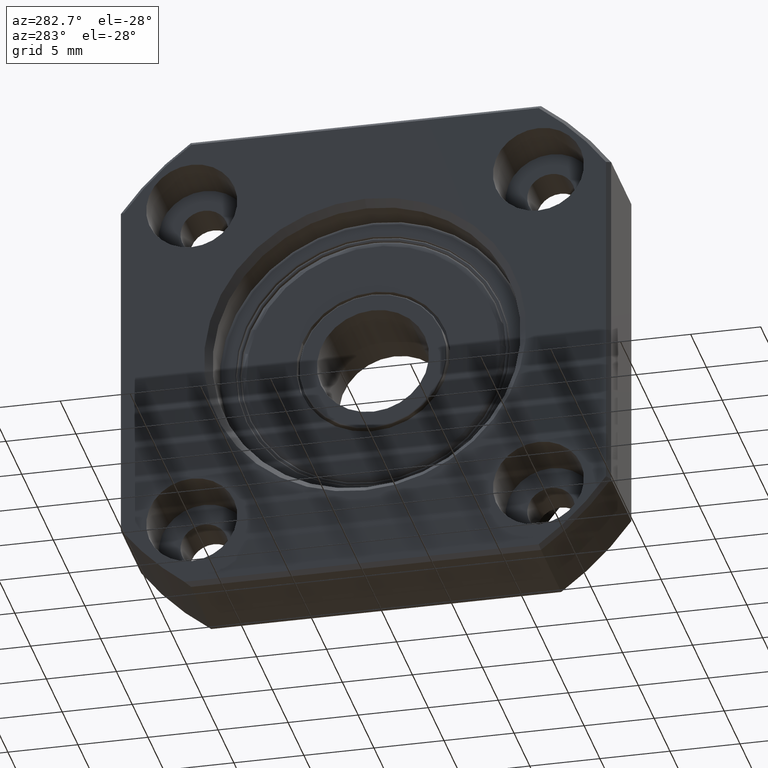
[diagram: clean part render]
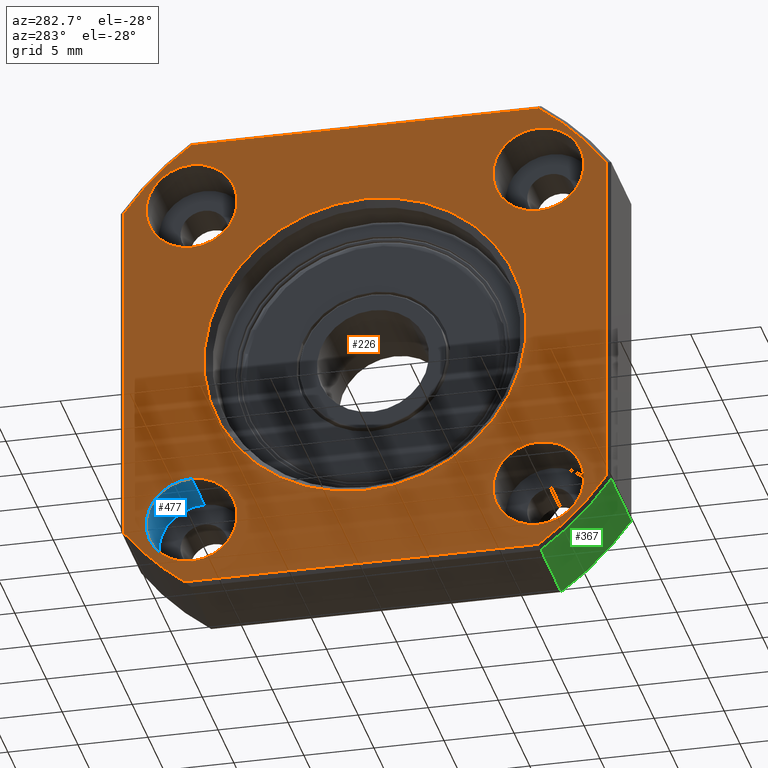
[diagram: same view with three faces highlighted in distinct colors, each labeled with its STEP entity id]
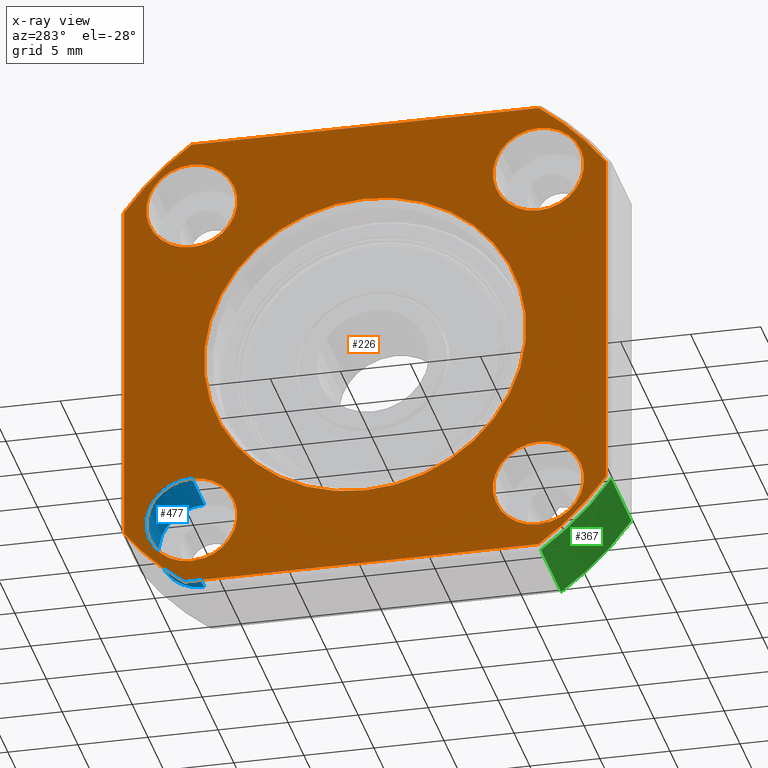
[diagram: x-ray of the same camera — body ghosted, the three highlighted faces saturated]
A machine part, auxiliary view with three faces highlighted in distinct colors.
The next image is the same camera in x-ray (body ghosted, the three faces saturated) — at least one of them is partly hidden behind the body in this view.
Their STEP definitions:

[orange] entity #226 — the highlighted planar face has unit normal (1, 0, 0).
#65 = VERTEX_POINT ( 'NONE', #814 ) ;
#67 = VERTEX_POINT ( 'NONE', #809 ) ;
#100 = EDGE_CURVE ( 'NONE', #65, #67, #1035, .T. ) ;
#116 = EDGE_CURVE ( 'NONE', #117, #140, #959, .T. ) ;
#117 = VERTEX_POINT ( 'NONE', #954 ) ;
#130 = EDGE_CURVE ( 'NONE', #246, #131, #1012, .T. ) ;
#131 = VERTEX_POINT ( 'NONE', #1007 ) ;
#140 = VERTEX_POINT ( 'NONE', #987 ) ;
#143 = EDGE_CURVE ( 'NONE', #159, #144, #1076, .T. ) ;
#144 = VERTEX_POINT ( 'NONE', #1071 ) ;
#159 = VERTEX_POINT ( 'NONE', #945 ) ;
#214 = ORIENTED_EDGE ( 'NONE', *, *, #100, .F. ) ;
#215 = EDGE_LOOP ( 'NONE', ( #308, #303 ) ) ;
#219 = EDGE_LOOP ( 'NONE', ( #220, #214 ) ) ;
#220 = ORIENTED_EDGE ( 'NONE', *, *, #221, .F. ) ;
#221 = EDGE_CURVE ( 'NONE', #67, #65, #1338, .T. ) ;
#222 = EDGE_LOOP ( 'NONE', ( #223, #224 ) ) ;
#223 = ORIENTED_EDGE ( 'NONE', *, *, #116, .T. ) ;
#224 = ORIENTED_EDGE ( 'NONE', *, *, #225, .T. ) ;
#225 = EDGE_CURVE ( 'NONE', #140, #117, #1164, .T. ) ;
#226 = ADVANCED_FACE ( 'NONE', ( #1159, #1158, #1157, #1156, #1155, #1154 ), #1153, .F. ) ;
#230 = EDGE_CURVE ( 'NONE', #238, #231, #1151, .T. ) ;
#231 = VERTEX_POINT ( 'NONE', #1143 ) ;
#238 = VERTEX_POINT ( 'NONE', #1133 ) ;
#246 = VERTEX_POINT ( 'NONE', #1180 ) ;
#265 = EDGE_CURVE ( 'NONE', #266, #270, #1298, .T. ) ;
#266 = VERTEX_POINT ( 'NONE', #1293 ) ;
#270 = VERTEX_POINT ( 'NONE', #1292 ) ;
#285 = EDGE_LOOP ( 'NONE', ( #286, #365 ) ) ;
#286 = ORIENTED_EDGE ( 'NONE', *, *, #287, .F. ) ;
#287 = EDGE_CURVE ( 'NONE', #231, #238, #1221, .T. ) ;
#288 = ORIENTED_EDGE ( 'NONE', *, *, #289, .F. ) ;
#289 = EDGE_CURVE ( 'NONE', #131, #246, #1216, .T. ) ;
#290 = ORIENTED_EDGE ( 'NONE', *, *, #130, .F. ) ;
#302 = EDGE_CURVE ( 'NONE', #144, #159, #1193, .T. ) ;
#303 = ORIENTED_EDGE ( 'NONE', *, *, #143, .F. ) ;
#304 = EDGE_LOOP ( 'NONE', ( #288, #290 ) ) ;
#308 = ORIENTED_EDGE ( 'NONE', *, *, #302, .F. ) ;
#330 = EDGE_CURVE ( 'NONE', #402, #331, #1314, .T. ) ;
#331 = VERTEX_POINT ( 'NONE', #1309 ) ;
#332 = ORIENTED_EDGE ( 'NONE', *, *, #333, .T. ) ;
#333 = EDGE_CURVE ( 'NONE', #331, #266, #1308, .T. ) ;
#336 = VERTEX_POINT ( 'NONE', #1303 ) ;
#337 = VERTEX_POINT ( 'NONE', #1304 ) ;
#360 = EDGE_LOOP ( 'NONE', ( #361, #429, #436, #432, #423, #425, #414, #332 ) ) ;
#361 = ORIENTED_EDGE ( 'NONE', *, *, #265, .T. ) ;
#365 = ORIENTED_EDGE ( 'NONE', *, *, #230, .F. ) ;
#395 = VERTEX_POINT ( 'NONE', #4395 ) ;
#402 = VERTEX_POINT ( 'NONE', #4379 ) ;
#414 = ORIENTED_EDGE ( 'NONE', *, *, #330, .T. ) ;
#423 = ORIENTED_EDGE ( 'NONE', *, *, #424, .T. ) ;
#424 = EDGE_CURVE ( 'NONE', #336, #434, #4317, .T. ) ;
#425 = ORIENTED_EDGE ( 'NONE', *, *, #426, .T. ) ;
#426 = EDGE_CURVE ( 'NONE', #434, #402, #4311, .T. ) ;
#429 = ORIENTED_EDGE ( 'NONE', *, *, #435, .T. ) ;
#432 = ORIENTED_EDGE ( 'NONE', *, *, #433, .T. ) ;
#433 = EDGE_CURVE ( 'NONE', #395, #336, #4366, .T. ) ;
#434 = VERTEX_POINT ( 'NONE', #4362 ) ;
#435 = EDGE_CURVE ( 'NONE', #270, #337, #4361, .T. ) ;
#436 = ORIENTED_EDGE ( 'NONE', *, *, #437, .T. ) ;
#437 = EDGE_CURVE ( 'NONE', #337, #395, #4357, .T. ) ;
#809 = CARTESIAN_POINT ( 'NONE',  ( 0.0000000000000000000, 12.37436867076460700, -9.124368670764555500 ) ) ;
#814 = CARTESIAN_POINT ( 'NONE',  ( 0.0000000000000000000, 12.37436867076460700, -15.62436867076455400 ) ) ;
#945 = CARTESIAN_POINT ( 'NONE',  ( 0.0000000000000000000, 12.37436867076460700, 9.124368670764559000 ) ) ;
#954 = CARTESIAN_POINT ( 'NONE',  ( 0.0000000000000000000, 0.0000000000000000000, 11.49999999999999600 ) ) ;
#955 = DIRECTION ( 'NONE',  ( 0.0000000000000000000, 0.0000000000000000000, -1.000000000000000000 ) ) ;
#956 = DIRECTION ( 'NONE',  ( 1.000000000000000000, 0.0000000000000000000, 0.0000000000000000000 ) ) ;
#957 = CARTESIAN_POINT ( 'NONE',  ( 0.0000000000000000000, 0.0000000000000000000, 0.0000000000000000000 ) ) ;
#958 = AXIS2_PLACEMENT_3D ( 'NONE', #957, #956, #955 ) ;
#959 = CIRCLE ( 'NONE', #958, 11.49999999999999600 ) ;
#983 = DIRECTION ( 'NONE',  ( 0.0000000000000000000, 0.0000000000000000000, 1.000000000000000000 ) ) ;
#984 = DIRECTION ( 'NONE',  ( -1.000000000000000000, -0.0000000000000000000, -0.0000000000000000000 ) ) ;
#985 = CARTESIAN_POINT ( 'NONE',  ( 0.0000000000000000000, 12.37436867076460700, -12.37436867076455500 ) ) ;
#986 = AXIS2_PLACEMENT_3D ( 'NONE', #985, #984, #983 ) ;
#987 = CARTESIAN_POINT ( 'NONE',  ( 0.0000000000000000000, 1.408297306895733500E-015, -11.49999999999999600 ) ) ;
#1007 = CARTESIAN_POINT ( 'NONE',  ( 0.0000000000000000000, -12.37436867076460000, 15.62436867076455700 ) ) ;
#1008 = DIRECTION ( 'NONE',  ( 0.0000000000000000000, 0.0000000000000000000, 1.000000000000000000 ) ) ;
#1009 = DIRECTION ( 'NONE',  ( -1.000000000000000000, -0.0000000000000000000, -0.0000000000000000000 ) ) ;
#1010 = CARTESIAN_POINT ( 'NONE',  ( 0.0000000000000000000, -12.37436867076460000, 12.37436867076455900 ) ) ;
#1011 = AXIS2_PLACEMENT_3D ( 'NONE', #1010, #1009, #1008 ) ;
#1012 = CIRCLE ( 'NONE', #1011, 3.249999999999999600 ) ;
#1035 = CIRCLE ( 'NONE', #986, 3.249999999999999600 ) ;
#1071 = CARTESIAN_POINT ( 'NONE',  ( 0.0000000000000000000, 12.37436867076460700, 15.62436867076455700 ) ) ;
#1072 = DIRECTION ( 'NONE',  ( 0.0000000000000000000, 0.0000000000000000000, 1.000000000000000000 ) ) ;
#1073 = DIRECTION ( 'NONE',  ( -1.000000000000000000, -0.0000000000000000000, -0.0000000000000000000 ) ) ;
#1074 = CARTESIAN_POINT ( 'NONE',  ( 0.0000000000000000000, 12.37436867076460700, 12.37436867076455900 ) ) ;
#1075 = AXIS2_PLACEMENT_3D ( 'NONE', #1074, #1073, #1072 ) ;
#1076 = CIRCLE ( 'NONE', #1075, 3.249999999999999600 ) ;
#1133 = CARTESIAN_POINT ( 'NONE',  ( 0.0000000000000000000, -12.37436867076460000, -15.62436867076455400 ) ) ;
#1143 = CARTESIAN_POINT ( 'NONE',  ( 0.0000000000000000000, -12.37436867076460000, -9.124368670764555500 ) ) ;
#1144 = DIRECTION ( 'NONE',  ( 0.0000000000000000000, 0.0000000000000000000, 1.000000000000000000 ) ) ;
#1145 = DIRECTION ( 'NONE',  ( -1.000000000000000000, -0.0000000000000000000, -0.0000000000000000000 ) ) ;
#1146 = CARTESIAN_POINT ( 'NONE',  ( 0.0000000000000000000, -12.37436867076460000, -12.37436867076455500 ) ) ;
#1147 = AXIS2_PLACEMENT_3D ( 'NONE', #1146, #1145, #1144 ) ;
#1148 = DIRECTION ( 'NONE',  ( 0.0000000000000000000, 0.0000000000000000000, -1.000000000000000000 ) ) ;
#1149 = DIRECTION ( 'NONE',  ( 1.000000000000000000, 0.0000000000000000000, 0.0000000000000000000 ) ) ;
#1150 = AXIS2_PLACEMENT_3D ( 'NONE', #1152, #1149, #1148 ) ;
#1151 = CIRCLE ( 'NONE', #1147, 3.249999999999999600 ) ;
#1152 = CARTESIAN_POINT ( 'NONE',  ( 0.0000000000000000000, 10.99999999999999800, 0.0000000000000000000 ) ) ;
#1153 = PLANE ( 'NONE',  #1150 ) ;
#1154 = FACE_OUTER_BOUND ( 'NONE', #360, .T. ) ;
#1155 = FACE_BOUND ( 'NONE', #285, .T. ) ;
#1156 = FACE_BOUND ( 'NONE', #304, .T. ) ;
#1157 = FACE_BOUND ( 'NONE', #215, .T. ) ;
#1158 = FACE_BOUND ( 'NONE', #219, .T. ) ;
#1159 = FACE_BOUND ( 'NONE', #222, .T. ) ;
#1160 = DIRECTION ( 'NONE',  ( 0.0000000000000000000, 0.0000000000000000000, -1.000000000000000000 ) ) ;
#1161 = DIRECTION ( 'NONE',  ( 1.000000000000000000, 0.0000000000000000000, 0.0000000000000000000 ) ) ;
#1162 = CARTESIAN_POINT ( 'NONE',  ( 0.0000000000000000000, 0.0000000000000000000, 0.0000000000000000000 ) ) ;
#1163 = AXIS2_PLACEMENT_3D ( 'NONE', #1162, #1161, #1160 ) ;
#1164 = CIRCLE ( 'NONE', #1163, 11.49999999999999600 ) ;
#1180 = CARTESIAN_POINT ( 'NONE',  ( 0.0000000000000000000, -12.37436867076460000, 9.124368670764559000 ) ) ;
#1189 = DIRECTION ( 'NONE',  ( 0.0000000000000000000, 0.0000000000000000000, 1.000000000000000000 ) ) ;
#1190 = DIRECTION ( 'NONE',  ( -1.000000000000000000, -0.0000000000000000000, -0.0000000000000000000 ) ) ;
#1191 = CARTESIAN_POINT ( 'NONE',  ( 0.0000000000000000000, 12.37436867076460700, 12.37436867076455900 ) ) ;
#1192 = AXIS2_PLACEMENT_3D ( 'NONE', #1191, #1190, #1189 ) ;
#1193 = CIRCLE ( 'NONE', #1192, 3.249999999999999600 ) ;
#1212 = DIRECTION ( 'NONE',  ( 0.0000000000000000000, 0.0000000000000000000, 1.000000000000000000 ) ) ;
#1213 = DIRECTION ( 'NONE',  ( -1.000000000000000000, -0.0000000000000000000, -0.0000000000000000000 ) ) ;
#1214 = CARTESIAN_POINT ( 'NONE',  ( 0.0000000000000000000, -12.37436867076460000, 12.37436867076455900 ) ) ;
#1215 = AXIS2_PLACEMENT_3D ( 'NONE', #1214, #1213, #1212 ) ;
#1216 = CIRCLE ( 'NONE', #1215, 3.249999999999999600 ) ;
#1217 = DIRECTION ( 'NONE',  ( 0.0000000000000000000, 0.0000000000000000000, 1.000000000000000000 ) ) ;
#1218 = DIRECTION ( 'NONE',  ( -1.000000000000000000, -0.0000000000000000000, -0.0000000000000000000 ) ) ;
#1219 = CARTESIAN_POINT ( 'NONE',  ( 0.0000000000000000000, -12.37436867076460000, -12.37436867076455500 ) ) ;
#1220 = AXIS2_PLACEMENT_3D ( 'NONE', #1219, #1218, #1217 ) ;
#1221 = CIRCLE ( 'NONE', #1220, 3.249999999999999600 ) ;
#1292 = CARTESIAN_POINT ( 'NONE',  ( 0.0000000000000000000, 12.90000000000007700, -17.19999999999994200 ) ) ;
#1293 = CARTESIAN_POINT ( 'NONE',  ( 0.0000000000000000000, 17.19999999999999200, -12.90000000000000600 ) ) ;
#1294 = DIRECTION ( 'NONE',  ( 0.0000000000000000000, 0.0000000000000000000, 1.000000000000000000 ) ) ;
#1295 = DIRECTION ( 'NONE',  ( -1.000000000000000000, -0.0000000000000000000, -0.0000000000000000000 ) ) ;
#1296 = CARTESIAN_POINT ( 'NONE',  ( 0.0000000000000000000, 0.0000000000000000000, 0.0000000000000000000 ) ) ;
#1297 = AXIS2_PLACEMENT_3D ( 'NONE', #1296, #1295, #1294 ) ;
#1298 = CIRCLE ( 'NONE', #1297, 21.50000000000000000 ) ;
#1303 = CARTESIAN_POINT ( 'NONE',  ( 0.0000000000000000000, -17.20000000000000600, 12.39354670786371800 ) ) ;
#1304 = CARTESIAN_POINT ( 'NONE',  ( 0.0000000000000000000, -12.39354670786381300, -17.19999999999994200 ) ) ;
#1305 = DIRECTION ( 'NONE',  ( 0.0000000000000000000, 0.0000000000000000000, -1.000000000000000000 ) ) ;
#1306 = VECTOR ( 'NONE', #1305, 1000.000000000000000 ) ;
#1307 = CARTESIAN_POINT ( 'NONE',  ( 0.0000000000000000000, 17.19999999999999200, -12.48999599679680000 ) ) ;
#1308 = LINE ( 'NONE', #1307, #1306 ) ;
#1309 = CARTESIAN_POINT ( 'NONE',  ( 0.0000000000000000000, 17.19999999999999200, 12.39354670786373400 ) ) ;
#1310 = DIRECTION ( 'NONE',  ( 0.0000000000000000000, 5.329070518200751400E-015, -1.000000000000000000 ) ) ;
#1311 = DIRECTION ( 'NONE',  ( -1.000000000000000000, -0.0000000000000000000, -0.0000000000000000000 ) ) ;
#1312 = CARTESIAN_POINT ( 'NONE',  ( 0.0000000000000000000, 0.0000000000000000000, 0.0000000000000000000 ) ) ;
#1313 = AXIS2_PLACEMENT_3D ( 'NONE', #1312, #1311, #1310 ) ;
#1314 = CIRCLE ( 'NONE', #1313, 21.19999999999999600 ) ;
#1334 = DIRECTION ( 'NONE',  ( 0.0000000000000000000, 0.0000000000000000000, 1.000000000000000000 ) ) ;
#1335 = DIRECTION ( 'NONE',  ( -1.000000000000000000, -0.0000000000000000000, -0.0000000000000000000 ) ) ;
#1336 = CARTESIAN_POINT ( 'NONE',  ( 0.0000000000000000000, 12.37436867076460700, -12.37436867076455500 ) ) ;
#1337 = AXIS2_PLACEMENT_3D ( 'NONE', #1336, #1335, #1334 ) ;
#1338 = CIRCLE ( 'NONE', #1337, 3.249999999999999600 ) ;
#4308 = DIRECTION ( 'NONE',  ( 0.0000000000000000000, 1.000000000000000000, 0.0000000000000000000 ) ) ;
#4309 = VECTOR ( 'NONE', #4308, 1000.000000000000000 ) ;
#4310 = CARTESIAN_POINT ( 'NONE',  ( 0.0000000000000000000, 12.48999599679689400, 17.19999999999992800 ) ) ;
#4311 = LINE ( 'NONE', #4310, #4309 ) ;
#4313 = DIRECTION ( 'NONE',  ( 0.0000000000000000000, -3.552713678800500900E-015, -1.000000000000000000 ) ) ;
#4314 = DIRECTION ( 'NONE',  ( -1.000000000000000000, -0.0000000000000000000, -0.0000000000000000000 ) ) ;
#4315 = CARTESIAN_POINT ( 'NONE',  ( 0.0000000000000000000, 0.0000000000000000000, 0.0000000000000000000 ) ) ;
#4316 = AXIS2_PLACEMENT_3D ( 'NONE', #4315, #4314, #4313 ) ;
#4317 = CIRCLE ( 'NONE', #4316, 21.19999999999999600 ) ;
#4353 = DIRECTION ( 'NONE',  ( 0.0000000000000000000, 8.881784197001252300E-016, -1.000000000000000000 ) ) ;
#4354 = DIRECTION ( 'NONE',  ( -1.000000000000000000, -0.0000000000000000000, -0.0000000000000000000 ) ) ;
#4355 = CARTESIAN_POINT ( 'NONE',  ( 0.0000000000000000000, 0.0000000000000000000, 0.0000000000000000000 ) ) ;
#4356 = AXIS2_PLACEMENT_3D ( 'NONE', #4355, #4354, #4353 ) ;
#4357 = CIRCLE ( 'NONE', #4356, 21.19999999999999600 ) ;
#4358 = DIRECTION ( 'NONE',  ( 0.0000000000000000000, -1.000000000000000000, 0.0000000000000000000 ) ) ;
#4359 = VECTOR ( 'NONE', #4358, 1000.000000000000000 ) ;
#4360 = CARTESIAN_POINT ( 'NONE',  ( 0.0000000000000000000, -12.48999599679687500, -17.19999999999994200 ) ) ;
#4361 = LINE ( 'NONE', #4360, #4359 ) ;
#4362 = CARTESIAN_POINT ( 'NONE',  ( 0.0000000000000000000, -12.39354670786382500, 17.19999999999992800 ) ) ;
#4363 = DIRECTION ( 'NONE',  ( 0.0000000000000000000, 0.0000000000000000000, 1.000000000000000000 ) ) ;
#4364 = VECTOR ( 'NONE', #4363, 1000.000000000000000 ) ;
#4365 = CARTESIAN_POINT ( 'NONE',  ( 0.0000000000000000000, -17.20000000000000600, 12.48999599679678100 ) ) ;
#4366 = LINE ( 'NONE', #4365, #4364 ) ;
#4379 = CARTESIAN_POINT ( 'NONE',  ( 0.0000000000000000000, 12.39354670786382500, 17.19999999999992800 ) ) ;
#4395 = CARTESIAN_POINT ( 'NONE',  ( 0.0000000000000000000, -17.20000000000000600, -12.39354670786371800 ) ) ;

[blue] entity #477 — the highlighted cylindrical surface (partial cylindrical patch) has radius 3.25 mm, axis along (-1, -0, -0).
#65 = VERTEX_POINT ( 'NONE', #814 ) ;
#66 = EDGE_CURVE ( 'NONE', #101, #65, #813, .T. ) ;
#67 = VERTEX_POINT ( 'NONE', #809 ) ;
#97 = EDGE_CURVE ( 'NONE', #102, #67, #1045, .T. ) ;
#101 = VERTEX_POINT ( 'NONE', #982 ) ;
#102 = VERTEX_POINT ( 'NONE', #981 ) ;
#221 = EDGE_CURVE ( 'NONE', #67, #65, #1338, .T. ) ;
#470 = ORIENTED_EDGE ( 'NONE', *, *, #66, .F. ) ;
#472 = ORIENTED_EDGE ( 'NONE', *, *, #481, .F. ) ;
#475 = EDGE_LOOP ( 'NONE', ( #470, #472, #514, #515 ) ) ;
#477 = ADVANCED_FACE ( 'NONE', ( #4305 ), #4301, .F. ) ;
#481 = EDGE_CURVE ( 'NONE', #102, #101, #4289, .T. ) ;
#514 = ORIENTED_EDGE ( 'NONE', *, *, #97, .T. ) ;
#515 = ORIENTED_EDGE ( 'NONE', *, *, #221, .T. ) ;
#809 = CARTESIAN_POINT ( 'NONE',  ( 0.0000000000000000000, 12.37436867076460700, -9.124368670764555500 ) ) ;
#810 = DIRECTION ( 'NONE',  ( -1.000000000000000000, -0.0000000000000000000, -0.0000000000000000000 ) ) ;
#811 = VECTOR ( 'NONE', #810, 1000.000000000000000 ) ;
#812 = CARTESIAN_POINT ( 'NONE',  ( 0.0000000000000000000, 12.37436867076460700, -15.62436867076455400 ) ) ;
#813 = LINE ( 'NONE', #812, #811 ) ;
#814 = CARTESIAN_POINT ( 'NONE',  ( 0.0000000000000000000, 12.37436867076460700, -15.62436867076455400 ) ) ;
#981 = CARTESIAN_POINT ( 'NONE',  ( 4.000000000000000000, 12.37436867076460700, -9.124368670764555500 ) ) ;
#982 = CARTESIAN_POINT ( 'NONE',  ( 4.000000000000000000, 12.37436867076460700, -15.62436867076455400 ) ) ;
#1042 = DIRECTION ( 'NONE',  ( -1.000000000000000000, -0.0000000000000000000, -0.0000000000000000000 ) ) ;
#1043 = VECTOR ( 'NONE', #1042, 1000.000000000000000 ) ;
#1044 = CARTESIAN_POINT ( 'NONE',  ( 0.0000000000000000000, 12.37436867076460700, -9.124368670764555500 ) ) ;
#1045 = LINE ( 'NONE', #1044, #1043 ) ;
#1334 = DIRECTION ( 'NONE',  ( 0.0000000000000000000, 0.0000000000000000000, 1.000000000000000000 ) ) ;
#1335 = DIRECTION ( 'NONE',  ( -1.000000000000000000, -0.0000000000000000000, -0.0000000000000000000 ) ) ;
#1336 = CARTESIAN_POINT ( 'NONE',  ( 0.0000000000000000000, 12.37436867076460700, -12.37436867076455500 ) ) ;
#1337 = AXIS2_PLACEMENT_3D ( 'NONE', #1336, #1335, #1334 ) ;
#1338 = CIRCLE ( 'NONE', #1337, 3.249999999999999600 ) ;
#4286 = DIRECTION ( 'NONE',  ( 0.0000000000000000000, 0.0000000000000000000, 1.000000000000000000 ) ) ;
#4287 = DIRECTION ( 'NONE',  ( -1.000000000000000000, -0.0000000000000000000, -0.0000000000000000000 ) ) ;
#4288 = AXIS2_PLACEMENT_3D ( 'NONE', #4295, #4287, #4286 ) ;
#4289 = CIRCLE ( 'NONE', #4288, 3.249999999999999600 ) ;
#4295 = CARTESIAN_POINT ( 'NONE',  ( 4.000000000000000000, 12.37436867076460700, -12.37436867076455500 ) ) ;
#4297 = DIRECTION ( 'NONE',  ( 0.0000000000000000000, 0.0000000000000000000, 1.000000000000000000 ) ) ;
#4298 = DIRECTION ( 'NONE',  ( -1.000000000000000000, -0.0000000000000000000, -0.0000000000000000000 ) ) ;
#4299 = CARTESIAN_POINT ( 'NONE',  ( 0.0000000000000000000, 12.37436867076460700, -12.37436867076455500 ) ) ;
#4300 = AXIS2_PLACEMENT_3D ( 'NONE', #4299, #4298, #4297 ) ;
#4301 = CYLINDRICAL_SURFACE ( 'NONE', #4300, 3.249999999999999600 ) ;
#4305 = FACE_OUTER_BOUND ( 'NONE', #475, .T. ) ;

[green] entity #367 — the highlighted cylindrical surface (partial cylindrical patch) has radius 21.5 mm, axis along (-1, -0, -0).
#240 = VERTEX_POINT ( 'NONE', #1131 ) ;
#241 = ORIENTED_EDGE ( 'NONE', *, *, #338, .T. ) ;
#305 = VERTEX_POINT ( 'NONE', #1279 ) ;
#306 = ORIENTED_EDGE ( 'NONE', *, *, #307, .F. ) ;
#307 = EDGE_CURVE ( 'NONE', #305, #240, #1278, .T. ) ;
#338 = EDGE_CURVE ( 'NONE', #305, #339, #1128, .T. ) ;
#339 = VERTEX_POINT ( 'NONE', #1390 ) ;
#340 = ORIENTED_EDGE ( 'NONE', *, *, #341, .F. ) ;
#341 = EDGE_CURVE ( 'NONE', #390, #339, #1389, .T. ) ;
#364 = EDGE_LOOP ( 'NONE', ( #306, #241, #340, #385 ) ) ;
#367 = ADVANCED_FACE ( 'NONE', ( #4479 ), #4478, .T. ) ;
#385 = ORIENTED_EDGE ( 'NONE', *, *, #386, .T. ) ;
#386 = EDGE_CURVE ( 'NONE', #390, #240, #4416, .T. ) ;
#390 = VERTEX_POINT ( 'NONE', #4405 ) ;
#1119 = AXIS2_PLACEMENT_3D ( 'NONE', #1120, #1392, #1391 ) ;
#1120 = CARTESIAN_POINT ( 'NONE',  ( 0.2999999999999947200, 0.0000000000000000000, 0.0000000000000000000 ) ) ;
#1128 = CIRCLE ( 'NONE', #1119, 21.50000000000000000 ) ;
#1131 = CARTESIAN_POINT ( 'NONE',  ( 6.700000000000011700, -17.50000000000000700, -12.48999599679678100 ) ) ;
#1275 = DIRECTION ( 'NONE',  ( 1.000000000000000000, 0.0000000000000000000, 0.0000000000000000000 ) ) ;
#1276 = VECTOR ( 'NONE', #1275, 1000.000000000000000 ) ;
#1277 = CARTESIAN_POINT ( 'NONE',  ( -81.64660725642808400, -17.50000000000000700, -12.48999599679678100 ) ) ;
#1278 = LINE ( 'NONE', #1277, #1276 ) ;
#1279 = CARTESIAN_POINT ( 'NONE',  ( 0.2999999999999947200, -17.50000000000000700, -12.48999599679678100 ) ) ;
#1386 = DIRECTION ( 'NONE',  ( -1.000000000000000000, -0.0000000000000000000, -0.0000000000000000000 ) ) ;
#1387 = VECTOR ( 'NONE', #1386, 1000.000000000000000 ) ;
#1388 = CARTESIAN_POINT ( 'NONE',  ( -81.64660725642808400, -12.48999599679687500, -17.49999999999994300 ) ) ;
#1389 = LINE ( 'NONE', #1388, #1387 ) ;
#1390 = CARTESIAN_POINT ( 'NONE',  ( 0.2999999999999947200, -12.48999599679687500, -17.49999999999994300 ) ) ;
#1391 = DIRECTION ( 'NONE',  ( 0.0000000000000000000, 0.0000000000000000000, -1.000000000000000000 ) ) ;
#1392 = DIRECTION ( 'NONE',  ( 1.000000000000000000, 0.0000000000000000000, 0.0000000000000000000 ) ) ;
#4405 = CARTESIAN_POINT ( 'NONE',  ( 6.700000000000011700, -12.48999599679687500, -17.49999999999994300 ) ) ;
#4408 = DIRECTION ( 'NONE',  ( 0.0000000000000000000, 0.0000000000000000000, 1.000000000000000000 ) ) ;
#4409 = DIRECTION ( 'NONE',  ( -1.000000000000000000, -0.0000000000000000000, -0.0000000000000000000 ) ) ;
#4410 = CARTESIAN_POINT ( 'NONE',  ( 6.700000000000011700, 0.0000000000000000000, 0.0000000000000000000 ) ) ;
#4411 = AXIS2_PLACEMENT_3D ( 'NONE', #4410, #4409, #4408 ) ;
#4416 = CIRCLE ( 'NONE', #4411, 21.50000000000000000 ) ;
#4474 = DIRECTION ( 'NONE',  ( 0.0000000000000000000, 0.0000000000000000000, 1.000000000000000000 ) ) ;
#4475 = DIRECTION ( 'NONE',  ( -1.000000000000000000, -0.0000000000000000000, -0.0000000000000000000 ) ) ;
#4476 = CARTESIAN_POINT ( 'NONE',  ( -81.64660725642808400, 0.0000000000000000000, 0.0000000000000000000 ) ) ;
#4477 = AXIS2_PLACEMENT_3D ( 'NONE', #4476, #4475, #4474 ) ;
#4478 = CYLINDRICAL_SURFACE ( 'NONE', #4477, 21.50000000000000000 ) ;
#4479 = FACE_OUTER_BOUND ( 'NONE', #364, .T. ) ;